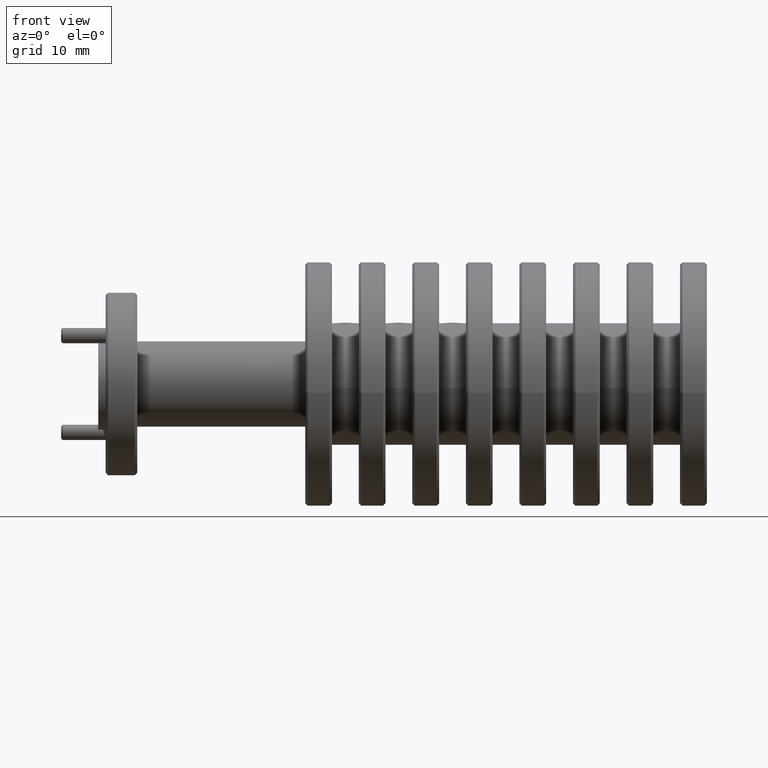
[diagram: clean part render]
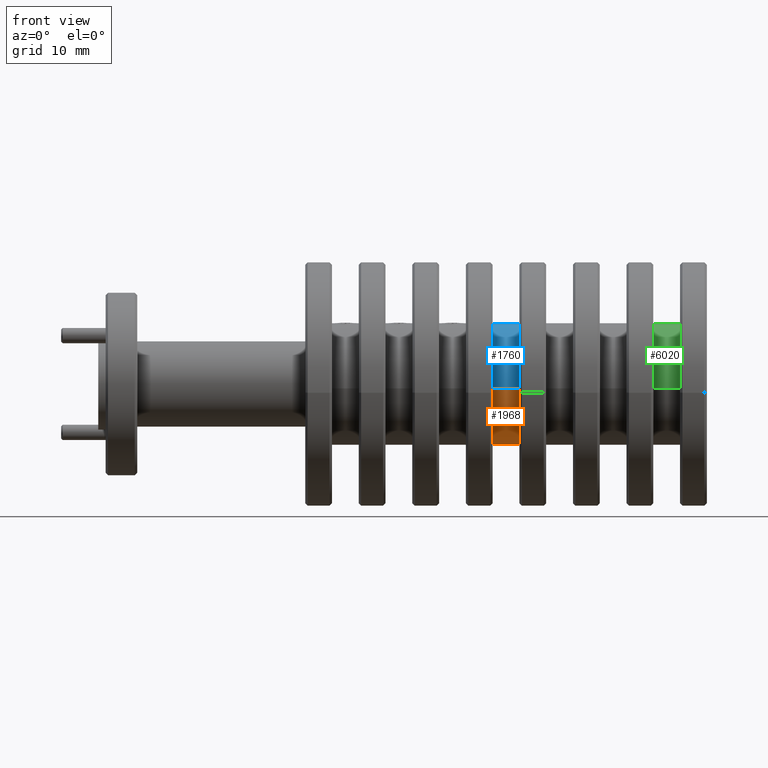
[diagram: same view with three faces highlighted in distinct colors, each labeled with its STEP entity id]
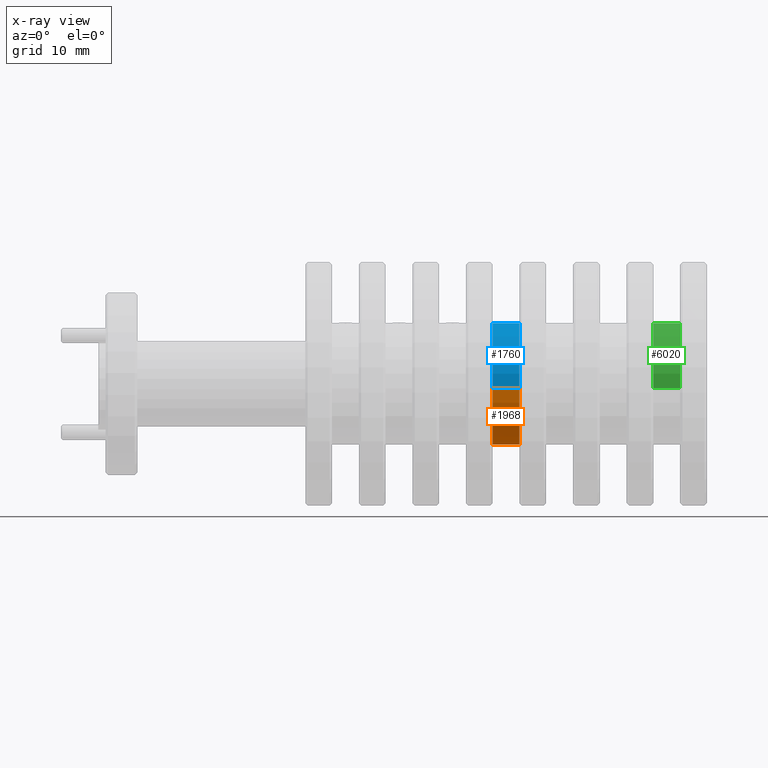
[diagram: x-ray of the same camera — body ghosted, the three highlighted faces saturated]
A machine part, front view with three faces highlighted in distinct colors.
The next image is the same camera in x-ray (body ghosted, the three faces saturated) — at least one of them is partly hidden behind the body in this view.
Their STEP definitions:

[orange] entity #1968 — the highlighted cylindrical surface (partial cylindrical patch) has radius 6.35 mm, axis along (1, 0, 0).
#7 = AXIS2_PLACEMENT_3D ( 'NONE', #3159, #8605, #6615 ) ;
#185 = ORIENTED_EDGE ( 'NONE', *, *, #7591, .T. ) ;
#223 = ORIENTED_EDGE ( 'NONE', *, *, #7371, .F. ) ;
#243 = CIRCLE ( 'NONE', #2983, 0.2499999999999999200 ) ;
#282 = DIRECTION ( 'NONE',  ( 1.000000000000000000, 0.0000000000000000000, 0.0000000000000000000 ) ) ;
#503 = DIRECTION ( 'NONE',  ( 1.000000000000000000, 0.0000000000000000000, 0.0000000000000000000 ) ) ;
#631 = CARTESIAN_POINT ( 'NONE',  ( -0.07388969428066993700, 1.233292430136084100, 1.027949227593007800 ) ) ;
#719 = VERTEX_POINT ( 'NONE', #7547 ) ;
#986 = DIRECTION ( 'NONE',  ( 0.0000000000000000000, 0.9974215059003817000, 0.07176586631132377000 ) ) ;
#1299 = CARTESIAN_POINT ( 'NONE',  ( 0.8061103057193299600, 1.482647806611179500, 1.045890694170838800 ) ) ;
#1379 = CARTESIAN_POINT ( 'NONE',  ( 0.03611030571933025000, 1.482647806611179500, 1.045890694170838800 ) ) ;
#1947 = DIRECTION ( 'NONE',  ( 0.0000000000000000000, 0.9974215059003817000, 0.07176586631132377000 ) ) ;
#1968 = ADVANCED_FACE ( 'NONE', ( #3850 ), #6298, .T. ) ;
#2017 = CARTESIAN_POINT ( 'NONE',  ( 0.03611030571933025000, 0.9839370536609888300, 1.010007761015177000 ) ) ;
#2291 = EDGE_CURVE ( 'NONE', #719, #4660, #243, .T. ) ;
#2704 = VECTOR ( 'NONE', #8760, 39.37007874015748100 ) ;
#2960 = EDGE_CURVE ( 'NONE', #7069, #5480, #8585, .T. ) ;
#2968 = DIRECTION ( 'NONE',  ( 1.000000000000000000, 0.0000000000000000000, 0.0000000000000000000 ) ) ;
#2983 = AXIS2_PLACEMENT_3D ( 'NONE', #631, #503, #1947 ) ;
#3159 = CARTESIAN_POINT ( 'NONE',  ( 0.8061103057193299600, 1.233292430136084100, 1.027949227593007800 ) ) ;
#3236 = VECTOR ( 'NONE', #2968, 39.37007874015748100 ) ;
#3659 = CARTESIAN_POINT ( 'NONE',  ( 0.03611030571933025000, 1.233292430136084100, 1.027949227593007800 ) ) ;
#3723 = AXIS2_PLACEMENT_3D ( 'NONE', #3659, #282, #986 ) ;
#3781 = ORIENTED_EDGE ( 'NONE', *, *, #2960, .F. ) ;
#3850 = FACE_OUTER_BOUND ( 'NONE', #6893, .T. ) ;
#3867 = LINE ( 'NONE', #6380, #3236 ) ;
#3901 = CARTESIAN_POINT ( 'NONE',  ( -0.07388969428066993700, 1.482647806611179500, 1.045890694170838800 ) ) ;
#4660 = VERTEX_POINT ( 'NONE', #3901 ) ;
#5261 = LINE ( 'NONE', #1299, #2704 ) ;
#5480 = VERTEX_POINT ( 'NONE', #1379 ) ;
#6298 = CYLINDRICAL_SURFACE ( 'NONE', #7, 0.2499999999999999200 ) ;
#6380 = CARTESIAN_POINT ( 'NONE',  ( 0.8061103057193299600, 0.9839370536609888300, 1.010007761015177000 ) ) ;
#6615 = DIRECTION ( 'NONE',  ( 0.0000000000000000000, 0.9974215059003817000, 0.07176586631132377000 ) ) ;
#6893 = EDGE_LOOP ( 'NONE', ( #223, #7054, #185, #3781 ) ) ;
#7054 = ORIENTED_EDGE ( 'NONE', *, *, #2291, .T. ) ;
#7069 = VERTEX_POINT ( 'NONE', #2017 ) ;
#7371 = EDGE_CURVE ( 'NONE', #719, #7069, #3867, .T. ) ;
#7547 = CARTESIAN_POINT ( 'NONE',  ( -0.07388969428066993700, 0.9839370536609888300, 1.010007761015177000 ) ) ;
#7591 = EDGE_CURVE ( 'NONE', #4660, #5480, #5261, .T. ) ;
#8585 = CIRCLE ( 'NONE', #3723, 0.2499999999999999200 ) ;
#8605 = DIRECTION ( 'NONE',  ( 1.000000000000000000, 0.0000000000000000000, 0.0000000000000000000 ) ) ;
#8760 = DIRECTION ( 'NONE',  ( 1.000000000000000000, 0.0000000000000000000, 0.0000000000000000000 ) ) ;

[blue] entity #1760 — the highlighted cylindrical surface (partial cylindrical patch) has radius 6.35 mm, axis along (1, 0, 0).
#117 = AXIS2_PLACEMENT_3D ( 'NONE', #6602, #6502, #7207 ) ;
#719 = VERTEX_POINT ( 'NONE', #7547 ) ;
#921 = DIRECTION ( 'NONE',  ( 1.000000000000000000, 0.0000000000000000000, 0.0000000000000000000 ) ) ;
#1299 = CARTESIAN_POINT ( 'NONE',  ( 0.8061103057193299600, 1.482647806611179500, 1.045890694170838800 ) ) ;
#1379 = CARTESIAN_POINT ( 'NONE',  ( 0.03611030571933025000, 1.482647806611179500, 1.045890694170838800 ) ) ;
#1760 = ADVANCED_FACE ( 'NONE', ( #4825 ), #2247, .T. ) ;
#1973 = CARTESIAN_POINT ( 'NONE',  ( 0.8061103057193299600, 1.233292430136084100, 1.027949227593007800 ) ) ;
#2017 = CARTESIAN_POINT ( 'NONE',  ( 0.03611030571933025000, 0.9839370536609888300, 1.010007761015177000 ) ) ;
#2114 = DIRECTION ( 'NONE',  ( 1.000000000000000000, 0.0000000000000000000, 0.0000000000000000000 ) ) ;
#2162 = DIRECTION ( 'NONE',  ( 0.0000000000000000000, 0.9974215059003817000, 0.07176586631132377000 ) ) ;
#2247 = CYLINDRICAL_SURFACE ( 'NONE', #3941, 0.2499999999999999200 ) ;
#2704 = VECTOR ( 'NONE', #8760, 39.37007874015748100 ) ;
#2876 = ORIENTED_EDGE ( 'NONE', *, *, #7371, .T. ) ;
#2968 = DIRECTION ( 'NONE',  ( 1.000000000000000000, 0.0000000000000000000, 0.0000000000000000000 ) ) ;
#3236 = VECTOR ( 'NONE', #2968, 39.37007874015748100 ) ;
#3373 = EDGE_CURVE ( 'NONE', #5480, #7069, #4117, .T. ) ;
#3515 = EDGE_CURVE ( 'NONE', #4660, #719, #6153, .T. ) ;
#3867 = LINE ( 'NONE', #6380, #3236 ) ;
#3901 = CARTESIAN_POINT ( 'NONE',  ( -0.07388969428066993700, 1.482647806611179500, 1.045890694170838800 ) ) ;
#3941 = AXIS2_PLACEMENT_3D ( 'NONE', #1973, #2114, #7504 ) ;
#4117 = CIRCLE ( 'NONE', #8006, 0.2499999999999999200 ) ;
#4660 = VERTEX_POINT ( 'NONE', #3901 ) ;
#4825 = FACE_OUTER_BOUND ( 'NONE', #6752, .T. ) ;
#5261 = LINE ( 'NONE', #1299, #2704 ) ;
#5480 = VERTEX_POINT ( 'NONE', #1379 ) ;
#5564 = CARTESIAN_POINT ( 'NONE',  ( 0.03611030571933025000, 1.233292430136084100, 1.027949227593007800 ) ) ;
#6153 = CIRCLE ( 'NONE', #117, 0.2499999999999999200 ) ;
#6380 = CARTESIAN_POINT ( 'NONE',  ( 0.8061103057193299600, 0.9839370536609888300, 1.010007761015177000 ) ) ;
#6502 = DIRECTION ( 'NONE',  ( 1.000000000000000000, 0.0000000000000000000, 0.0000000000000000000 ) ) ;
#6602 = CARTESIAN_POINT ( 'NONE',  ( -0.07388969428066993700, 1.233292430136084100, 1.027949227593007800 ) ) ;
#6752 = EDGE_LOOP ( 'NONE', ( #6980, #2876, #6771, #6784 ) ) ;
#6771 = ORIENTED_EDGE ( 'NONE', *, *, #3373, .F. ) ;
#6784 = ORIENTED_EDGE ( 'NONE', *, *, #7591, .F. ) ;
#6980 = ORIENTED_EDGE ( 'NONE', *, *, #3515, .T. ) ;
#7069 = VERTEX_POINT ( 'NONE', #2017 ) ;
#7207 = DIRECTION ( 'NONE',  ( 0.0000000000000000000, 0.9974215059003817000, 0.07176586631132377000 ) ) ;
#7371 = EDGE_CURVE ( 'NONE', #719, #7069, #3867, .T. ) ;
#7504 = DIRECTION ( 'NONE',  ( 0.0000000000000000000, 0.9974215059003817000, 0.07176586631132377000 ) ) ;
#7547 = CARTESIAN_POINT ( 'NONE',  ( -0.07388969428066993700, 0.9839370536609888300, 1.010007761015177000 ) ) ;
#7591 = EDGE_CURVE ( 'NONE', #4660, #5480, #5261, .T. ) ;
#8006 = AXIS2_PLACEMENT_3D ( 'NONE', #5564, #921, #2162 ) ;
#8760 = DIRECTION ( 'NONE',  ( 1.000000000000000000, 0.0000000000000000000, 0.0000000000000000000 ) ) ;

[green] entity #6020 — the highlighted cylindrical surface (partial cylindrical patch) has radius 6.35 mm, axis along (1, 0, 0).
#216 = DIRECTION ( 'NONE',  ( 1.000000000000000000, 0.0000000000000000000, 0.0000000000000000000 ) ) ;
#331 = EDGE_CURVE ( 'NONE', #8090, #773, #6338, .T. ) ;
#373 = DIRECTION ( 'NONE',  ( 0.0000000000000000000, 0.9974215059003817000, 0.07176586631132377000 ) ) ;
#590 = CIRCLE ( 'NONE', #6957, 0.2499999999999999200 ) ;
#697 = AXIS2_PLACEMENT_3D ( 'NONE', #5755, #7840, #373 ) ;
#773 = VERTEX_POINT ( 'NONE', #4153 ) ;
#1901 = CARTESIAN_POINT ( 'NONE',  ( 0.5861103057193299800, 0.9839370536609888300, 1.010007761015177000 ) ) ;
#1966 = DIRECTION ( 'NONE',  ( 1.000000000000000000, 0.0000000000000000000, 0.0000000000000000000 ) ) ;
#1972 = CARTESIAN_POINT ( 'NONE',  ( 0.8061103057193299600, 1.482647806611179500, 1.045890694170838800 ) ) ;
#2359 = ORIENTED_EDGE ( 'NONE', *, *, #7978, .F. ) ;
#2486 = FACE_OUTER_BOUND ( 'NONE', #4058, .T. ) ;
#2763 = EDGE_CURVE ( 'NONE', #4170, #3531, #6812, .T. ) ;
#3272 = DIRECTION ( 'NONE',  ( 0.0000000000000000000, 0.9974215059003817000, 0.07176586631132377000 ) ) ;
#3321 = DIRECTION ( 'NONE',  ( 1.000000000000000000, 0.0000000000000000000, 0.0000000000000000000 ) ) ;
#3485 = VECTOR ( 'NONE', #7962, 39.37007874015748100 ) ;
#3531 = VERTEX_POINT ( 'NONE', #4984 ) ;
#4033 = CARTESIAN_POINT ( 'NONE',  ( 0.5861103057193299800, 1.482647806611179500, 1.045890694170838800 ) ) ;
#4058 = EDGE_LOOP ( 'NONE', ( #6595, #4701, #2359, #5988 ) ) ;
#4153 = CARTESIAN_POINT ( 'NONE',  ( 0.6961103057193300800, 0.9839370536609888300, 1.010007761015177000 ) ) ;
#4170 = VERTEX_POINT ( 'NONE', #4033 ) ;
#4701 = ORIENTED_EDGE ( 'NONE', *, *, #331, .T. ) ;
#4984 = CARTESIAN_POINT ( 'NONE',  ( 0.6961103057193300800, 1.482647806611179500, 1.045890694170838800 ) ) ;
#5469 = CIRCLE ( 'NONE', #697, 0.2499999999999999200 ) ;
#5495 = VECTOR ( 'NONE', #1966, 39.37007874015748100 ) ;
#5755 = CARTESIAN_POINT ( 'NONE',  ( 0.6961103057193300800, 1.233292430136084100, 1.027949227593007800 ) ) ;
#5988 = ORIENTED_EDGE ( 'NONE', *, *, #2763, .F. ) ;
#6020 = ADVANCED_FACE ( 'NONE', ( #2486 ), #6969, .T. ) ;
#6060 = CARTESIAN_POINT ( 'NONE',  ( 0.8061103057193299600, 0.9839370536609888300, 1.010007761015177000 ) ) ;
#6338 = LINE ( 'NONE', #6060, #5495 ) ;
#6595 = ORIENTED_EDGE ( 'NONE', *, *, #7241, .T. ) ;
#6812 = LINE ( 'NONE', #1972, #3485 ) ;
#6957 = AXIS2_PLACEMENT_3D ( 'NONE', #7649, #216, #7669 ) ;
#6969 = CYLINDRICAL_SURFACE ( 'NONE', #8530, 0.2499999999999999200 ) ;
#7241 = EDGE_CURVE ( 'NONE', #4170, #8090, #590, .T. ) ;
#7363 = CARTESIAN_POINT ( 'NONE',  ( 0.8061103057193299600, 1.233292430136084100, 1.027949227593007800 ) ) ;
#7649 = CARTESIAN_POINT ( 'NONE',  ( 0.5861103057193299800, 1.233292430136084100, 1.027949227593007800 ) ) ;
#7669 = DIRECTION ( 'NONE',  ( 0.0000000000000000000, 0.9974215059003817000, 0.07176586631132377000 ) ) ;
#7840 = DIRECTION ( 'NONE',  ( 1.000000000000000000, 0.0000000000000000000, 0.0000000000000000000 ) ) ;
#7962 = DIRECTION ( 'NONE',  ( 1.000000000000000000, 0.0000000000000000000, 0.0000000000000000000 ) ) ;
#7978 = EDGE_CURVE ( 'NONE', #3531, #773, #5469, .T. ) ;
#8090 = VERTEX_POINT ( 'NONE', #1901 ) ;
#8530 = AXIS2_PLACEMENT_3D ( 'NONE', #7363, #3321, #3272 ) ;